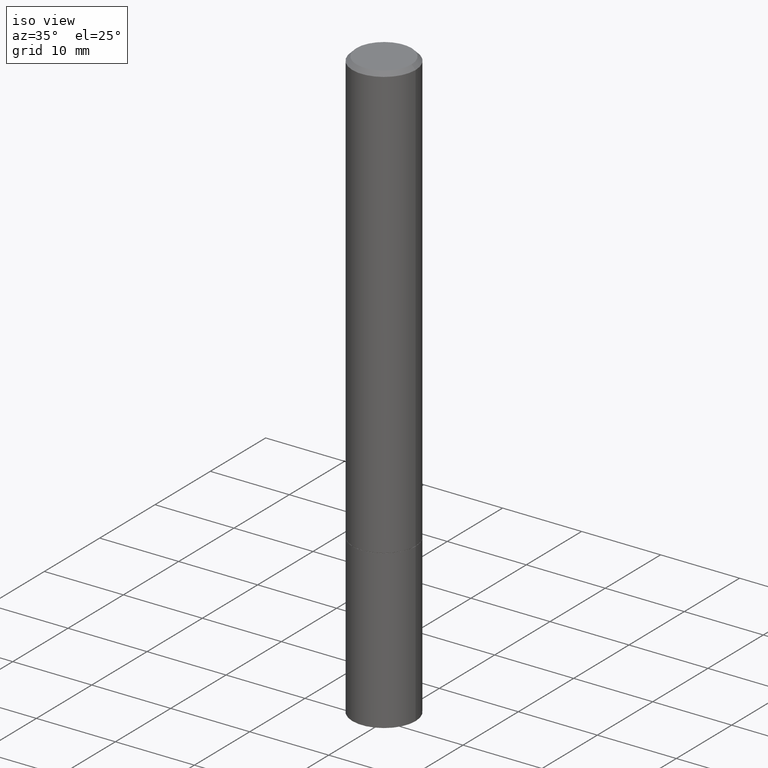
[diagram: clean part render]
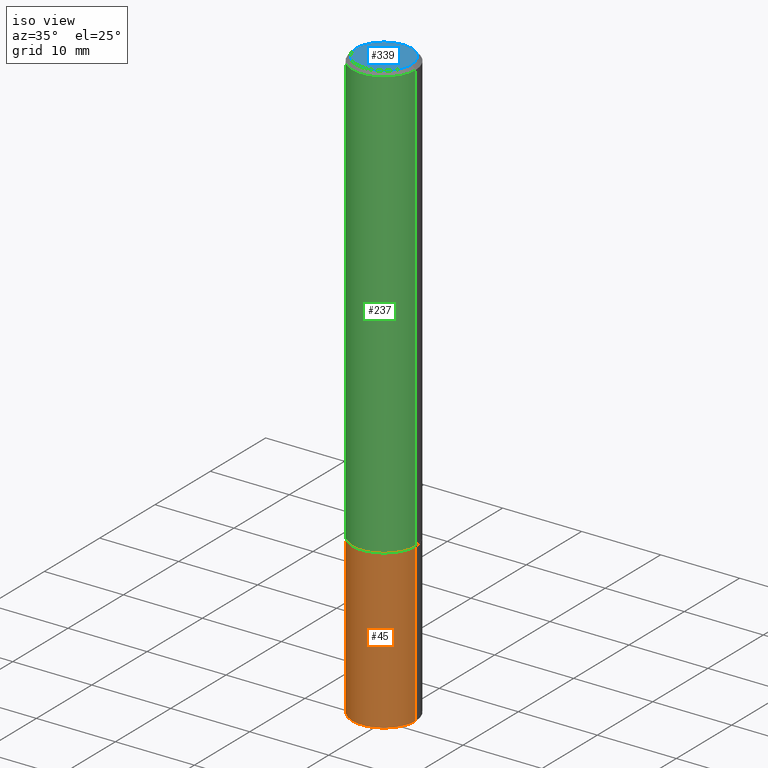
[diagram: same view with three faces highlighted in distinct colors, each labeled with its STEP entity id]
A machine part, iso view with three faces highlighted in distinct colors.
Their STEP definitions:

[orange] entity #45 — the highlighted cylindrical surface (partial cylindrical patch) has radius 4.0005 mm, axis along (-0, 0, 1).
#11 = ORIENTED_EDGE ( 'NONE', *, *, #359, .T. ) ;
#13 = VERTEX_POINT ( 'NONE', #14 ) ;
#14 = CARTESIAN_POINT ( 'NONE',  ( 0.1575000000000000011, -1.140946271907162522E-14, -2.952799999999999869 ) ) ;
#26 = DIRECTION ( 'NONE',  ( -2.445468806185136597E-29, 3.491481338843145583E-15, 1.000000000000000000 ) ) ;
#28 = CIRCLE ( 'NONE', #67, 0.1575000000000000011 ) ;
#35 = CARTESIAN_POINT ( 'NONE',  ( -0.1575000000000000011, -7.815945085411336161E-15, -2.952799999999999869 ) ) ;
#45 = ADVANCED_FACE ( 'NONE', ( #165 ), #166, .T. ) ;
#61 = CARTESIAN_POINT ( 'NONE',  ( 5.295418152913294345E-29, -7.560453691130947423E-15, -2.165399999999999991 ) ) ;
#62 = EDGE_CURVE ( 'NONE', #13, #263, #135, .T. ) ;
#67 = AXIS2_PLACEMENT_3D ( 'NONE', #61, #119, #285 ) ;
#92 = ORIENTED_EDGE ( 'NONE', *, *, #274, .F. ) ;
#102 = VECTOR ( 'NONE', #275, 39.37007874015748143 ) ;
#103 = CIRCLE ( 'NONE', #179, 0.1575000000000000011 ) ;
#109 = CARTESIAN_POINT ( 'NONE',  ( 0.000000000000000000, 0.000000000000000000, 0.000000000000000000 ) ) ;
#119 = DIRECTION ( 'NONE',  ( -2.445468806185136597E-29, 3.491481338843145583E-15, 1.000000000000000000 ) ) ;
#135 = LINE ( 'NONE', #299, #102 ) ;
#136 = DIRECTION ( 'NONE',  ( -2.445468806185136877E-29, 3.491481338843145188E-15, 1.000000000000000000 ) ) ;
#141 = CARTESIAN_POINT ( 'NONE',  ( 0.1575000000000000011, -8.660270312866534114E-15, -2.165399999999999991 ) ) ;
#144 = DIRECTION ( 'NONE',  ( 1.000000000000000000, -6.982962677686261977E-15, 0.000000000000000000 ) ) ;
#148 = ORIENTED_EDGE ( 'NONE', *, *, #62, .T. ) ;
#152 = EDGE_CURVE ( 'NONE', #290, #286, #248, .T. ) ;
#165 = FACE_OUTER_BOUND ( 'NONE', #265, .T. ) ;
#166 = CYLINDRICAL_SURFACE ( 'NONE', #254, 0.1575000000000000011 ) ;
#169 = VECTOR ( 'NONE', #136, 39.37007874015748143 ) ;
#170 = CARTESIAN_POINT ( 'NONE',  ( 7.220980290903470182E-29, -1.030964609733603853E-14, -2.952799999999999869 ) ) ;
#179 = AXIS2_PLACEMENT_3D ( 'NONE', #170, #281, #144 ) ;
#248 = LINE ( 'NONE', #333, #169 ) ;
#254 = AXIS2_PLACEMENT_3D ( 'NONE', #109, #26, #303 ) ;
#263 = VERTEX_POINT ( 'NONE', #141 ) ;
#265 = EDGE_LOOP ( 'NONE', ( #325, #11, #148, #92 ) ) ;
#274 = EDGE_CURVE ( 'NONE', #286, #263, #28, .T. ) ;
#275 = DIRECTION ( 'NONE',  ( -2.445468806185136877E-29, 3.491481338843145188E-15, 1.000000000000000000 ) ) ;
#281 = DIRECTION ( 'NONE',  ( -2.445468806185136597E-29, 3.491481338843145583E-15, 1.000000000000000000 ) ) ;
#285 = DIRECTION ( 'NONE',  ( 1.000000000000000000, -6.982962677686268288E-15, 0.000000000000000000 ) ) ;
#286 = VERTEX_POINT ( 'NONE', #338 ) ;
#290 = VERTEX_POINT ( 'NONE', #35 ) ;
#299 = CARTESIAN_POINT ( 'NONE',  ( 0.1575000000000000011, -1.099816621735586889E-15, 7.679978421878598033E-30 ) ) ;
#303 = DIRECTION ( 'NONE',  ( 1.000000000000000000, -6.982962677686265922E-15, 4.876176775795935232E-29 ) ) ;
#325 = ORIENTED_EDGE ( 'NONE', *, *, #152, .F. ) ;
#333 = CARTESIAN_POINT ( 'NONE',  ( -0.1575000000000000011, 1.119104808822157801E-15, -7.747322767151475583E-30 ) ) ;
#338 = CARTESIAN_POINT ( 'NONE',  ( -0.1575000000000000011, -7.815945085411336161E-15, -2.165399999999999991 ) ) ;
#359 = EDGE_CURVE ( 'NONE', #290, #13, #103, .T. ) ;

[blue] entity #339 — the highlighted planar face has unit normal (0, -0, -1).
#16 = ORIENTED_EDGE ( 'NONE', *, *, #40, .T. ) ;
#40 = EDGE_CURVE ( 'NONE', #99, #259, #213, .T. ) ;
#42 = ORIENTED_EDGE ( 'NONE', *, *, #255, .T. ) ;
#46 = EDGE_LOOP ( 'NONE', ( #42, #16 ) ) ;
#51 = CIRCLE ( 'NONE', #198, 0.1374999999999997058 ) ;
#52 = CARTESIAN_POINT ( 'NONE',  ( 0.1374999999999997058, -1.046838268059730322E-15, 4.268512490107428597E-18 ) ) ;
#58 = DIRECTION ( 'NONE',  ( 2.438088387897960049E-29, -3.491481338843145188E-15, -1.000000000000000000 ) ) ;
#77 = CARTESIAN_POINT ( 'NONE',  ( -1.043851414335219820E-46, 1.490343170380447200E-32, 4.268512490100411279E-18 ) ) ;
#99 = VERTEX_POINT ( 'NONE', #52 ) ;
#143 = DIRECTION ( 'NONE',  ( -1.000000000000000000, 6.982962677686265922E-15, -4.876176775795935793E-29 ) ) ;
#172 = FACE_OUTER_BOUND ( 'NONE', #46, .T. ) ;
#185 = DIRECTION ( 'NONE',  ( 1.000000000000000000, -6.982962677686265922E-15, 4.876173381029110692E-29 ) ) ;
#189 = DIRECTION ( 'NONE',  ( -2.445468806185136597E-29, 3.491481338843145583E-15, 1.000000000000000000 ) ) ;
#195 = DIRECTION ( 'NONE',  ( 1.000000000000000000, -6.982962677686265922E-15, 4.876173381029110692E-29 ) ) ;
#198 = AXIS2_PLACEMENT_3D ( 'NONE', #313, #217, #195 ) ;
#213 = CIRCLE ( 'NONE', #225, 0.1374999999999997058 ) ;
#217 = DIRECTION ( 'NONE',  ( -2.445468806185136597E-29, 3.491481338843145583E-15, 1.000000000000000000 ) ) ;
#225 = AXIS2_PLACEMENT_3D ( 'NONE', #77, #189, #185 ) ;
#255 = EDGE_CURVE ( 'NONE', #259, #99, #51, .T. ) ;
#259 = VERTEX_POINT ( 'NONE', #282 ) ;
#282 = CARTESIAN_POINT ( 'NONE',  ( -0.1374999999999997058, 9.950721815702905608E-16, 4.268512490093574228E-18 ) ) ;
#283 = CARTESIAN_POINT ( 'NONE',  ( 9.601573681818595033E-16, 0.1374999999999997058, -4.779444278458812147E-16 ) ) ;
#313 = CARTESIAN_POINT ( 'NONE',  ( -1.043851414335219820E-46, 1.490343170380447200E-32, 4.268512490100411279E-18 ) ) ;
#339 = ADVANCED_FACE ( 'NONE', ( #172 ), #343, .F. ) ;
#341 = AXIS2_PLACEMENT_3D ( 'NONE', #283, #58, #143 ) ;
#343 = PLANE ( 'NONE',  #341 ) ;

[green] entity #237 — the highlighted cylindrical surface (partial cylindrical patch) has radius 4.0005 mm, axis along (-0, 0, 1).
#3 = CARTESIAN_POINT ( 'NONE',  ( 0.1574999999999999178, -8.656778831527689529E-15, -2.164399999999999658 ) ) ;
#5 = DIRECTION ( 'NONE',  ( -2.445468806185136597E-29, 3.491481338843145583E-15, 1.000000000000000000 ) ) ;
#19 = CARTESIAN_POINT ( 'NONE',  ( 0.000000000000000000, 0.000000000000000000, 0.000000000000000000 ) ) ;
#34 = CARTESIAN_POINT ( 'NONE',  ( 0.1574999999999998346, -1.099816621735585705E-15, 7.679978421878591026E-30 ) ) ;
#37 = EDGE_LOOP ( 'NONE', ( #183, #352, #129, #358 ) ) ;
#48 = CARTESIAN_POINT ( 'NONE',  ( -0.1574999999999999178, -2.694291109462323887E-15, -2.164399999999999658 ) ) ;
#65 = CIRCLE ( 'NONE', #271, 0.1574999999999999178 ) ;
#78 = VECTOR ( 'NONE', #186, 39.37007874015748143 ) ;
#80 = DIRECTION ( 'NONE',  ( -2.445468806185136597E-29, 3.491481338843145583E-15, 1.000000000000000000 ) ) ;
#82 = DIRECTION ( 'NONE',  ( 1.000000000000000000, -6.982962677686265922E-15, 0.000000000000000000 ) ) ;
#83 = AXIS2_PLACEMENT_3D ( 'NONE', #146, #5, #82 ) ;
#85 = DIRECTION ( 'NONE',  ( 1.000000000000000000, -6.982962677686265922E-15, 4.876176775795935793E-29 ) ) ;
#87 = DIRECTION ( 'NONE',  ( -2.445468806185136877E-29, 3.491481338843145188E-15, 1.000000000000000000 ) ) ;
#105 = EDGE_CURVE ( 'NONE', #229, #125, #366, .T. ) ;
#120 = LINE ( 'NONE', #34, #289 ) ;
#125 = VERTEX_POINT ( 'NONE', #209 ) ;
#129 = ORIENTED_EDGE ( 'NONE', *, *, #348, .T. ) ;
#133 = DIRECTION ( 'NONE',  ( -2.445468806185136597E-29, 3.491481338843145583E-15, 1.000000000000000000 ) ) ;
#146 = CARTESIAN_POINT ( 'NONE',  ( 4.890937612370282792E-31, -6.982962677686303935E-17, -0.02000000000000003858 ) ) ;
#157 = VERTEX_POINT ( 'NONE', #3 ) ;
#160 = FACE_OUTER_BOUND ( 'NONE', #37, .T. ) ;
#163 = AXIS2_PLACEMENT_3D ( 'NONE', #19, #133, #85 ) ;
#183 = ORIENTED_EDGE ( 'NONE', *, *, #105, .F. ) ;
#186 = DIRECTION ( 'NONE',  ( -2.445468806185136877E-29, 3.491481338843145188E-15, 1.000000000000000000 ) ) ;
#209 = CARTESIAN_POINT ( 'NONE',  ( -0.1574999999999996958, 1.029986994958721618E-15, -0.02000000000000003858 ) ) ;
#212 = CARTESIAN_POINT ( 'NONE',  ( 5.292972684107108742E-29, -7.556962209792102838E-15, -2.164399999999999658 ) ) ;
#216 = CARTESIAN_POINT ( 'NONE',  ( 0.1574999999999996958, -1.150358061425877105E-15, -0.02000000000000003858 ) ) ;
#222 = EDGE_CURVE ( 'NONE', #229, #157, #65, .T. ) ;
#229 = VERTEX_POINT ( 'NONE', #48 ) ;
#237 = ADVANCED_FACE ( 'NONE', ( #160 ), #268, .T. ) ;
#262 = VERTEX_POINT ( 'NONE', #216 ) ;
#267 = CARTESIAN_POINT ( 'NONE',  ( -0.1574999999999998346, 1.119104808822156617E-15, -7.747322767151467176E-30 ) ) ;
#268 = CYLINDRICAL_SURFACE ( 'NONE', #163, 0.1574999999999998346 ) ;
#271 = AXIS2_PLACEMENT_3D ( 'NONE', #212, #80, #337 ) ;
#280 = CIRCLE ( 'NONE', #83, 0.1574999999999996958 ) ;
#289 = VECTOR ( 'NONE', #87, 39.37007874015748143 ) ;
#314 = EDGE_CURVE ( 'NONE', #125, #262, #280, .T. ) ;
#337 = DIRECTION ( 'NONE',  ( 1.000000000000000000, -6.982962677686265922E-15, 0.000000000000000000 ) ) ;
#348 = EDGE_CURVE ( 'NONE', #157, #262, #120, .T. ) ;
#352 = ORIENTED_EDGE ( 'NONE', *, *, #222, .T. ) ;
#358 = ORIENTED_EDGE ( 'NONE', *, *, #314, .F. ) ;
#366 = LINE ( 'NONE', #267, #78 ) ;